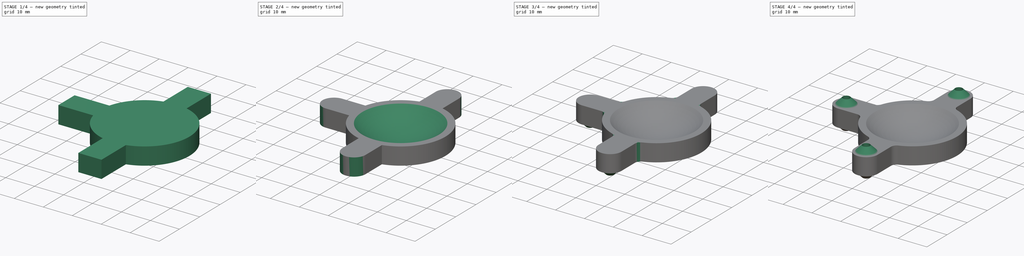
[diagram: build sequence overview — one tinted view per stage of 4, left to right]
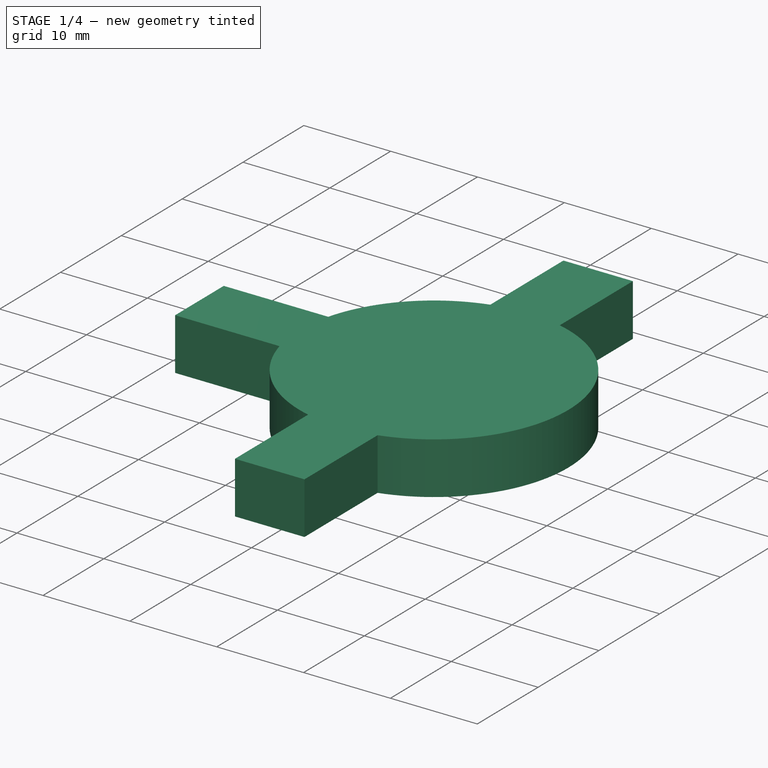
[diagram: stage 1 of 4 — iso view after this stage's code; geometry added in this stage tinted green]
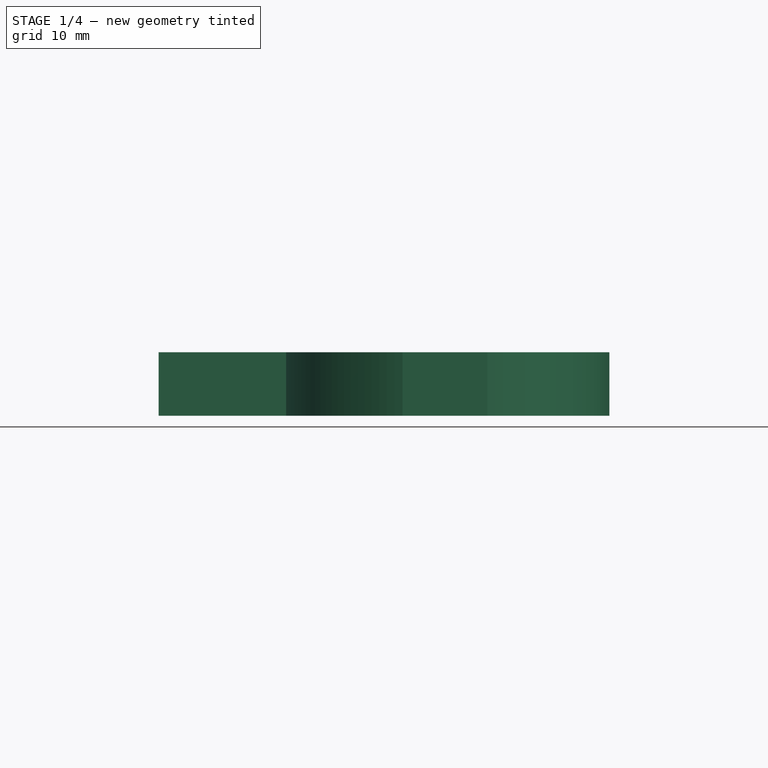
[diagram: stage 1 of 4 — front view after this stage's code; geometry added in this stage tinted green]
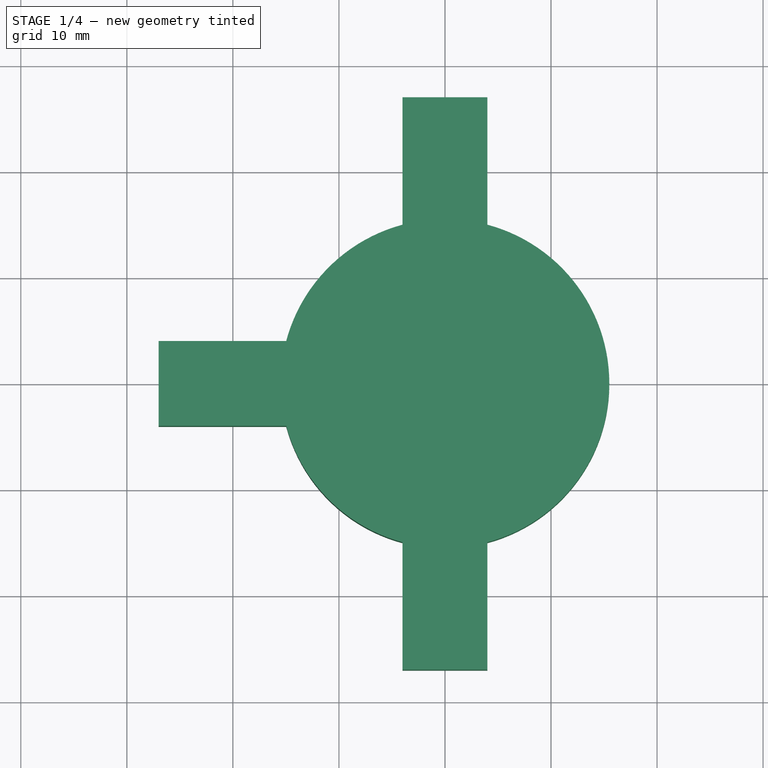
[diagram: stage 1 of 4 — top view after this stage's code; geometry added in this stage tinted green]
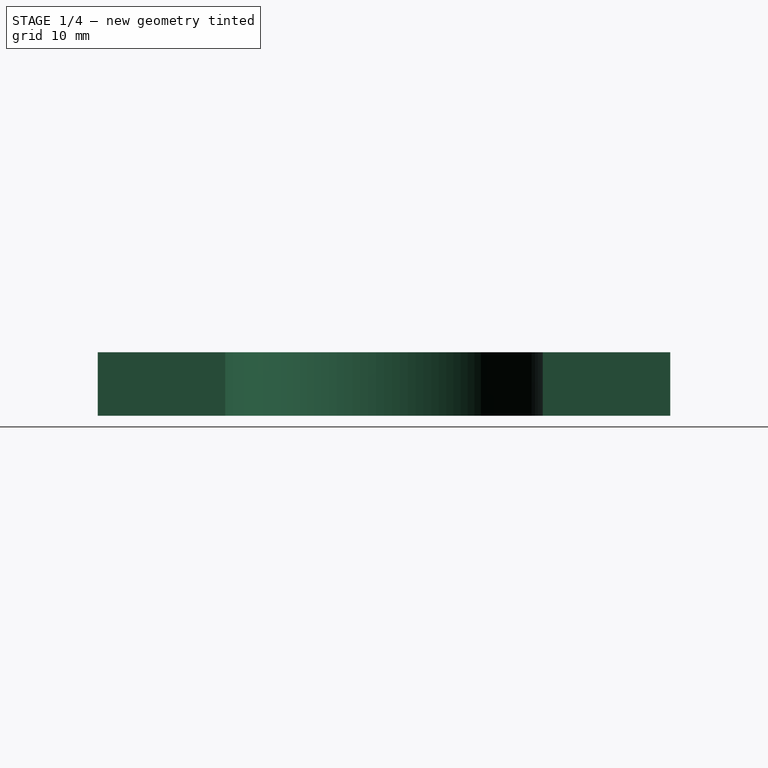
[diagram: stage 1 of 4 — right view after this stage's code; geometry added in this stage tinted green]
FCSTD DOCUMENT  (FreeCAD 0.20R29603 (Git))
Label: CapsuleHolder_Middle
License: All rights reserved
LicenseURL: http://en.wikipedia.org/wiki/All_rights_reserved
objects: Sketcher::SketchObject×6, PartDesign::Pad×4, PartDesign::Body×3, PartDesign::Boolean×2, PartDesign::Fillet×2, PartDesign::Chamfer×2, PartDesign::Pocket×2, Part::Sphere×1, Spreadsheet::Sheet×1
note: 32 computed .brp shape members not serialized (recipe doc carries the construction recipe); baked Part::Feature solids carry a one-line shape summary decoded from their .brp

FEATURE [Sketcher::SketchObject] Sketch
  FullyConstrained = true
  MapMode = 5
  Support = -> [XY_Plane]
  sketch-geometry (1):
    g0: Circle CenterX=0 CenterY=0 CenterZ=0 NormalX=0 NormalY=0 NormalZ=1 AngleXU=0 Radius=15.5
  constraints (2):
    c: Coincident(g0,g-1)
    c: Diameter(g0) = 31
FEATURE [PartDesign::Pad] Pad
  Direction = (0,0,1)
  Length = 6
  Length2 = 10
  Profile = -> Sketch
  ReferenceAxis = -> Sketch [N_Axis]
  Type = 0
FEATURE [Sketcher::SketchObject] Sketch001
  FullyConstrained = true
  MapMode = 5
  Support = -> [XY_Plane001]
  sketch-geometry (9):
    g0: LineSegment StartX=-4 StartY=27 StartZ=0 EndX=-4 EndY=4 EndZ=0
    g1: LineSegment StartX=-4 StartY=-27 StartZ=0 EndX=4 EndY=-27 EndZ=0
    g2: LineSegment StartX=4 StartY=-27 StartZ=0 EndX=4 EndY=27 EndZ=0
    g3: LineSegment StartX=4 StartY=27 StartZ=0 EndX=-4 EndY=27 EndZ=0
    g4: GeomPoint X=0 Y=0 Z=0
    g5: LineSegment StartX=-4 StartY=4 StartZ=0 EndX=-27 EndY=4 EndZ=0
    g6: LineSegment StartX=-27 StartY=4 StartZ=0 EndX=-27 EndY=-4 EndZ=0
    g7: LineSegment StartX=-27 StartY=-4 StartZ=0 EndX=-4 EndY=-4 EndZ=0
    g8: LineSegment StartX=-4 StartY=-4 StartZ=0 EndX=-4 EndY=-27 EndZ=0
  constraints (23):
    c: Coincident(g8,g1)
    c: Coincident(g1,g2)
    c: Coincident(g2,g3)
    c: Coincident(g3,g0)
    c: Horizontal(g1)
    c: Horizontal(g3)
    c: Vertical(g0)
    c: Vertical(g2)
    c: Symmetric(g1,g0,g4)
    c: Coincident(g4,g-1)
    c: DistanceY(g2,g2) = 54
    c: DistanceX(g3,g3) = 8
    c: Horizontal(g5)
    c: Coincident(g5,g6)
    c: Vertical(g6)
    c: Coincident(g6,g7)
    c: Horizontal(g7)
    c: Coincident(g0,g5)
    c: Coincident(g8,g7)
    c: Symmetric(g0,g7,g-1)
    c: Equal(g6,g3)
    c: DistanceX(g5,g4) = 27
    c: Equal(g0,g8)
FEATURE [PartDesign::Pad] Pad001
  Direction = (0,0,1)
  Length = 6
  Length2 = 10
  Profile = -> Sketch001
  ReferenceAxis = -> Sketch001 [N_Axis]
  Type = 0
FEATURE [PartDesign::Body] Body001  label="Fastening"
  Group = -> [Sketch001,Pad001]
  Origin = -> Origin001
  Tip = -> Pad001
FEATURE [PartDesign::Boolean] Boolean
  Group = -> [Body001,Body]
  Type = 0
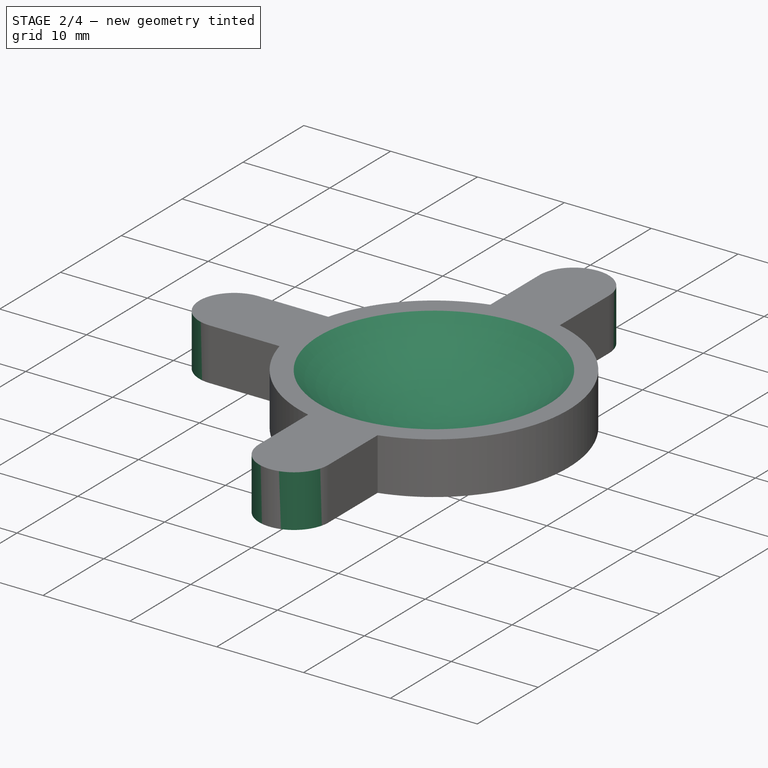
[diagram: stage 2 of 4 — iso view after this stage's code; geometry added in this stage tinted green]
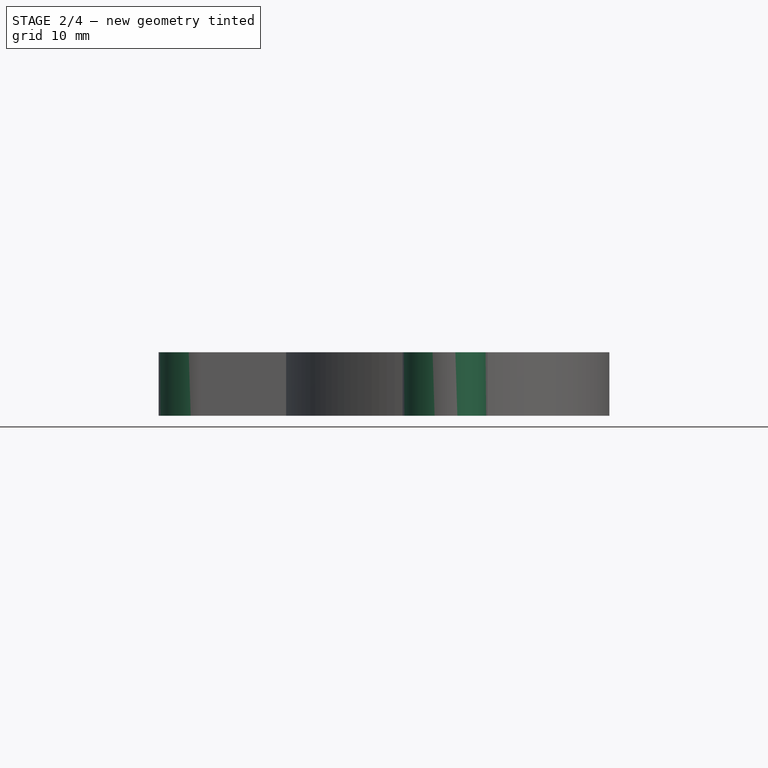
[diagram: stage 2 of 4 — front view after this stage's code; geometry added in this stage tinted green]
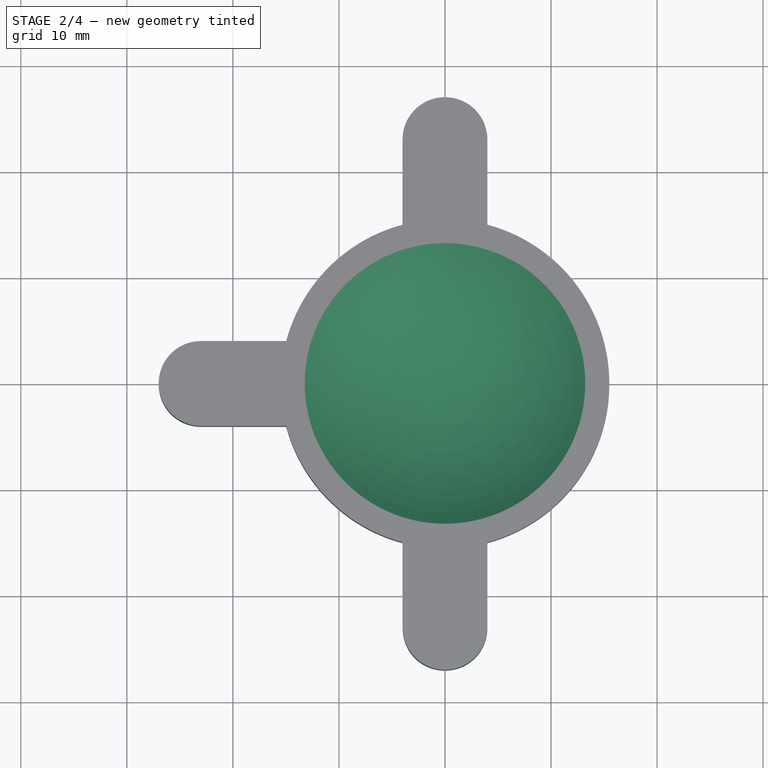
[diagram: stage 2 of 4 — top view after this stage's code; geometry added in this stage tinted green]
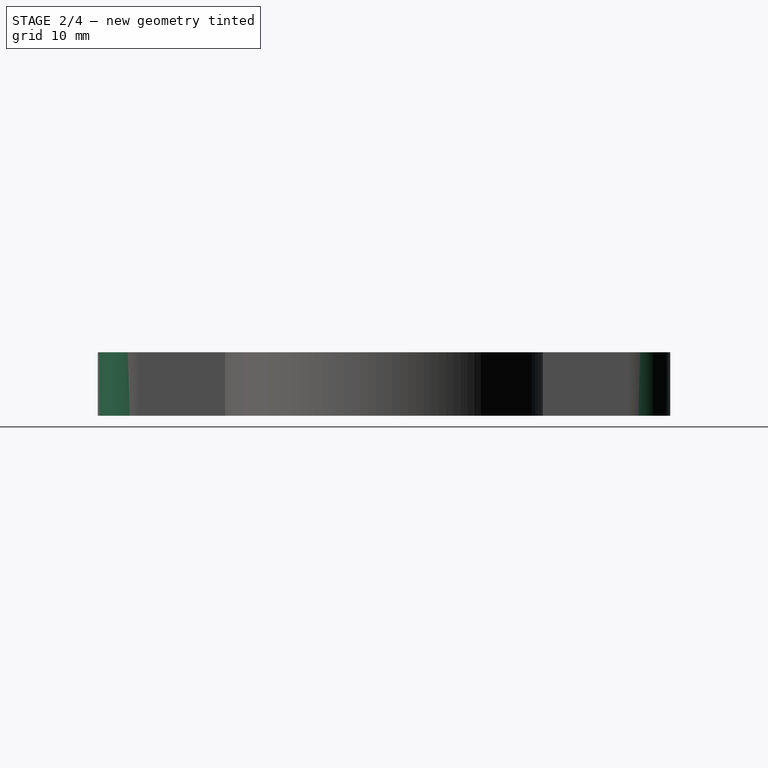
[diagram: stage 2 of 4 — right view after this stage's code; geometry added in this stage tinted green]
FEATURE [PartDesign::Body] Body  label="Main"
  Group = -> [Sketch,Pad]
  Origin = -> Origin
  Tip = -> Pad
FEATURE [Part::Sphere] Sphere  label="Сфера"
  Angle1 = -90
  Angle2 = 90
  Angle3 = 360
  AttacherType = Attacher::AttachEngine3D
  Placement = pos=(0,0,21) rot=(0,0,1;0rad)
  Radius = 20
FEATURE [PartDesign::Boolean] Boolean001
  BaseFeature = -> Boolean
  Group = -> [Sphere]
  Type = 1
FEATURE [PartDesign::Fillet] Fillet
  Base = -> Boolean001 [Edge61,Edge62,Edge57,Edge41,Edge25,Edge8]
  BaseFeature = -> Boolean001
  Radius = 3.99
  SupportTransform = false
  UseAllEdges = false
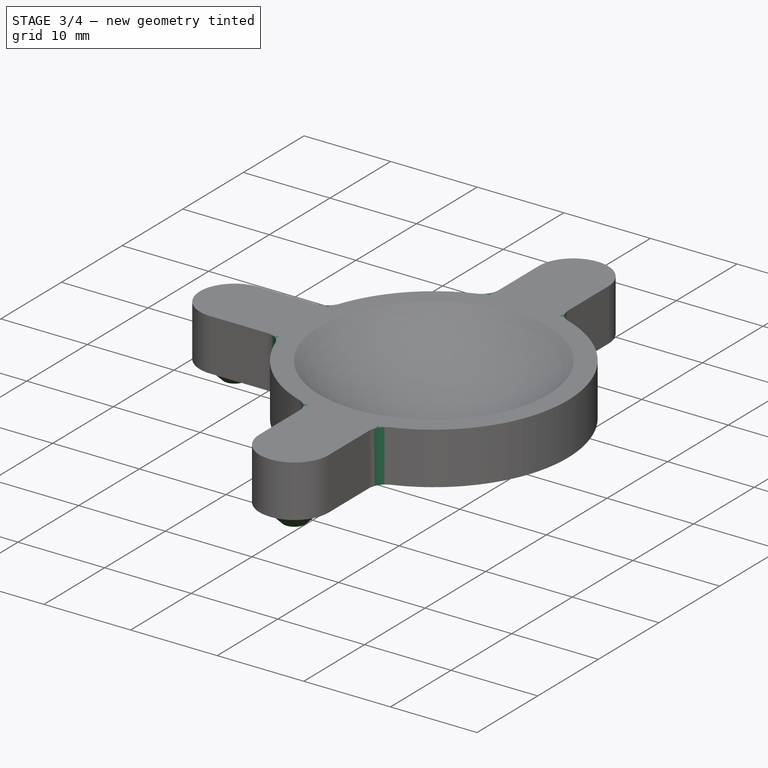
[diagram: stage 3 of 4 — iso view after this stage's code; geometry added in this stage tinted green]
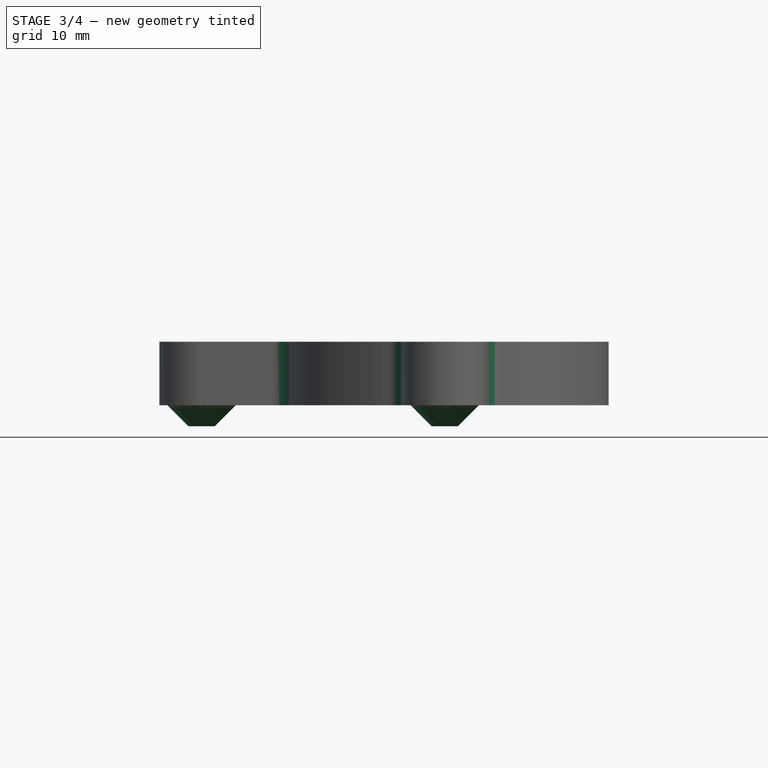
[diagram: stage 3 of 4 — front view after this stage's code; geometry added in this stage tinted green]
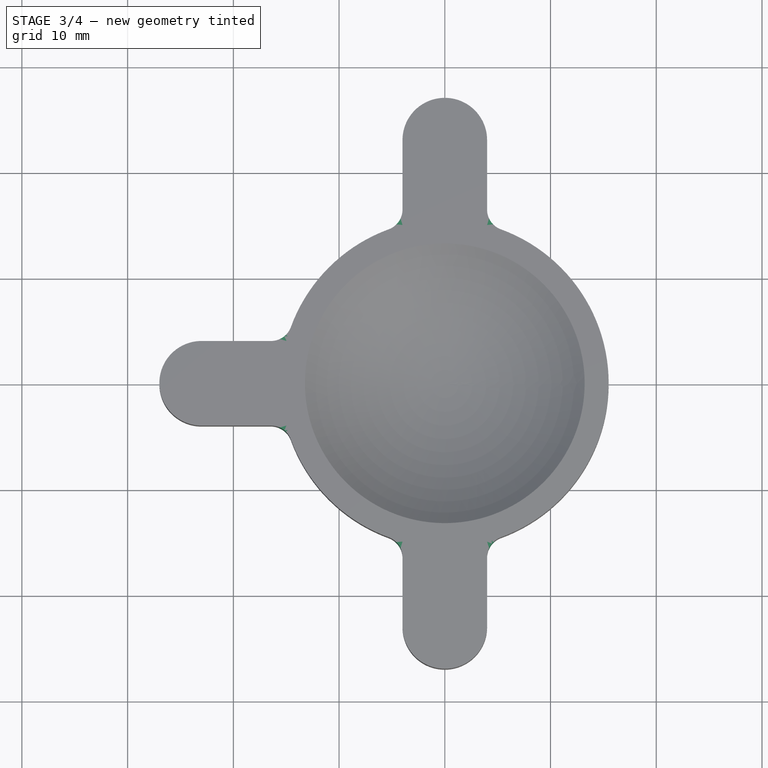
[diagram: stage 3 of 4 — top view after this stage's code; geometry added in this stage tinted green]
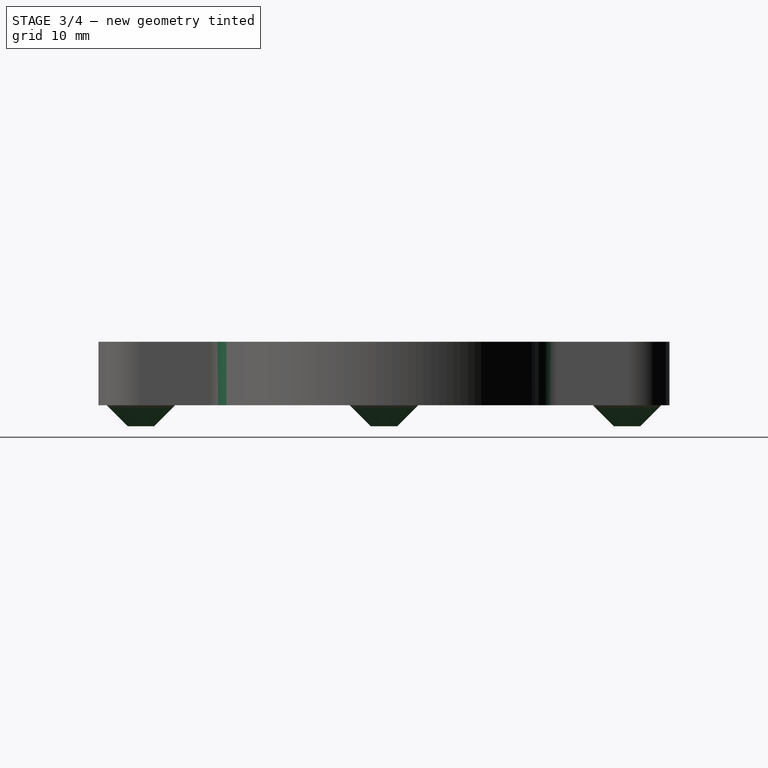
[diagram: stage 3 of 4 — right view after this stage's code; geometry added in this stage tinted green]
FEATURE [PartDesign::Fillet] Fillet001
  Base = -> Fillet [Edge39,Edge21,Edge74,Edge70,Edge35,Edge3]
  BaseFeature = -> Fillet
  Radius = 2
  SupportTransform = false
  UseAllEdges = false
FEATURE [Sketcher::SketchObject] Sketch002
  FullyConstrained = true
  MapMode = 5
  Placement = pos=(0,0,0) rot=(1,0,0;3.14159rad)
  Support = -> [Fillet001]
  expr: Constraints[5] = <<Vars>>.pillar_diameter
  expr: Constraints[6] = <<Vars>>.pillar_diameter
  expr: Constraints[7] = <<Vars>>.pillar_diameter
  sketch-geometry (3):
    g0: Circle CenterX=0 CenterY=23 CenterZ=0 NormalX=0 NormalY=0 NormalZ=1 AngleXU=0 Radius=1.25
    g1: Circle CenterX=-23 CenterY=0 CenterZ=0 NormalX=0 NormalY=0 NormalZ=1 AngleXU=0 Radius=1.25
    g2: Circle CenterX=0 CenterY=-23 CenterZ=0 NormalX=0 NormalY=0 NormalZ=1 AngleXU=0 Radius=1.25
  constraints (8):
    c: PointOnObject(g0,g-2)
    c: PointOnObject(g1,g-1)
    c: Symmetric(g2,g0,g-1)
    c: DistanceX(g1,g-1) = 23
    c: DistanceY(g-1,g0) = 23
    c: Diameter(g0) = 2.5
    c: Diameter(g1) = 2.5
    c: Diameter(g2) = 2.5
FEATURE [PartDesign::Pad] Pad002
  BaseFeature = -> Fillet001
  Direction = (0,0,-1)
  Length = 2
  Length2 = 10
  Profile = -> Sketch002
  ReferenceAxis = -> Sketch002 [N_Axis]
  Type = 0
FEATURE [PartDesign::Chamfer] Chamfer
  Angle = 45
  Base = -> Pad002 [Edge76,Edge12,Edge65]
  BaseFeature = -> Pad002
  ChamferType = 0
  FlipDirection = false
  Size = 1.99
  Size2 = 1
  SupportTransform = false
  UseAllEdges = false
FEATURE [Sketcher::SketchObject] Sketch003
  FullyConstrained = true
  MapMode = 5
  Placement = pos=(0,0,-2) rot=(1,0,0;3.14159rad)
  Support = -> [Chamfer]
  expr: Constraints[3] = <<Vars>>.pillar_diameter
  expr: Constraints[4] = <<Vars>>.pillar_diameter
  expr: Constraints[5] = <<Vars>>.pillar_diameter
  sketch-geometry (3):
    g0: Circle CenterX=0 CenterY=23 CenterZ=0 NormalX=0 NormalY=0 NormalZ=1 AngleXU=0 Radius=1.25
    g1: Circle CenterX=-23 CenterY=0 CenterZ=0 NormalX=0 NormalY=0 NormalZ=1 AngleXU=0 Radius=1.25
    g2: Circle CenterX=0 CenterY=-23 CenterZ=0 NormalX=0 NormalY=0 NormalZ=1 AngleXU=0 Radius=1.25
  constraints (8):
    c: PointOnObject(g0,g-2)
    c: PointOnObject(g1,g-1)
    c: Symmetric(g2,g0,g-1)
    c: Diameter(g0) = 2.5
    c: Diameter(g2) = 2.5
    c: Diameter(g1) = 2.5
    c: DistanceX(g1,g-1) = 23
    c: DistanceY(g-1,g0) = 23
FEATURE [PartDesign::Pocket] Pocket
  BaseFeature = -> Chamfer
  Direction = (0,0,1)
  Length = 4
  Length2 = 5
  Profile = -> Sketch003
  ReferenceAxis = -> Sketch003 [N_Axis]
  Type = 0
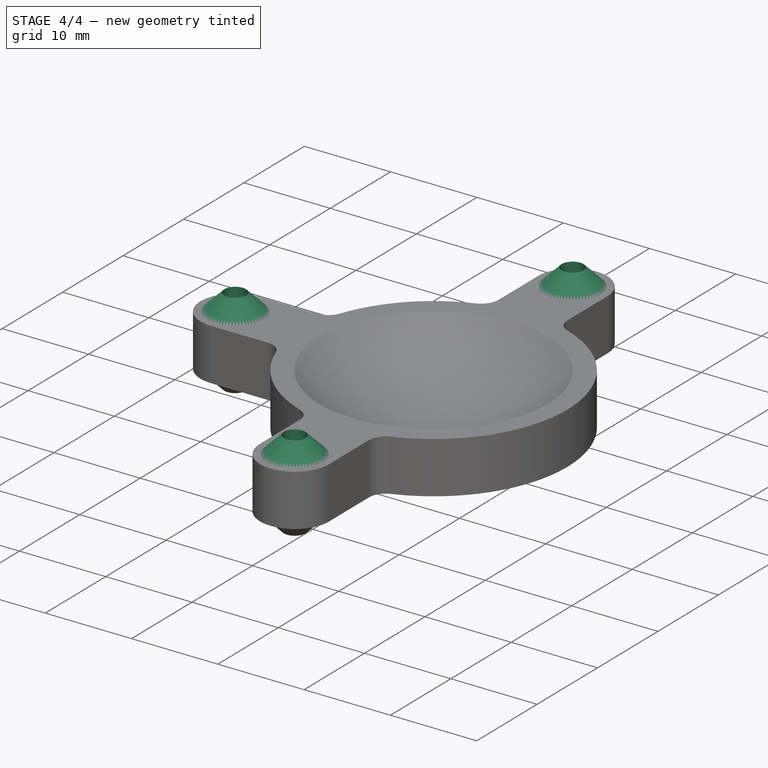
[diagram: stage 4 of 4 — iso view after this stage's code; geometry added in this stage tinted green]
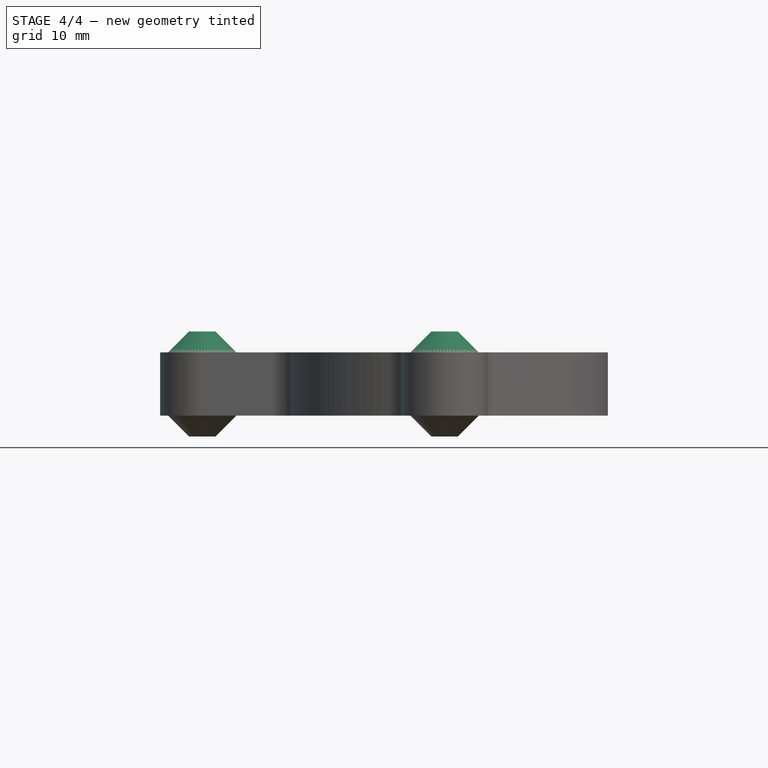
[diagram: stage 4 of 4 — front view after this stage's code; geometry added in this stage tinted green]
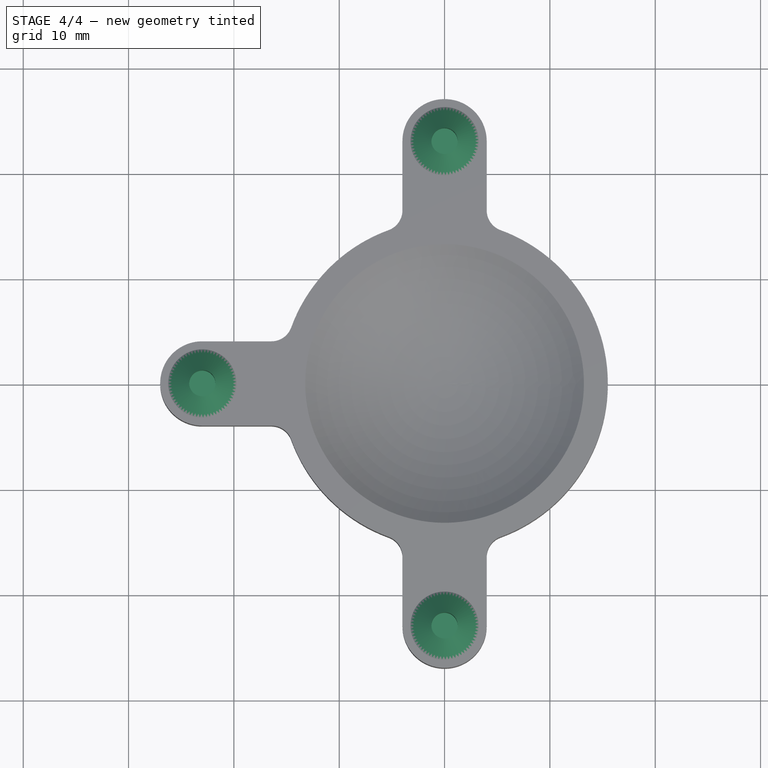
[diagram: stage 4 of 4 — top view after this stage's code; geometry added in this stage tinted green]
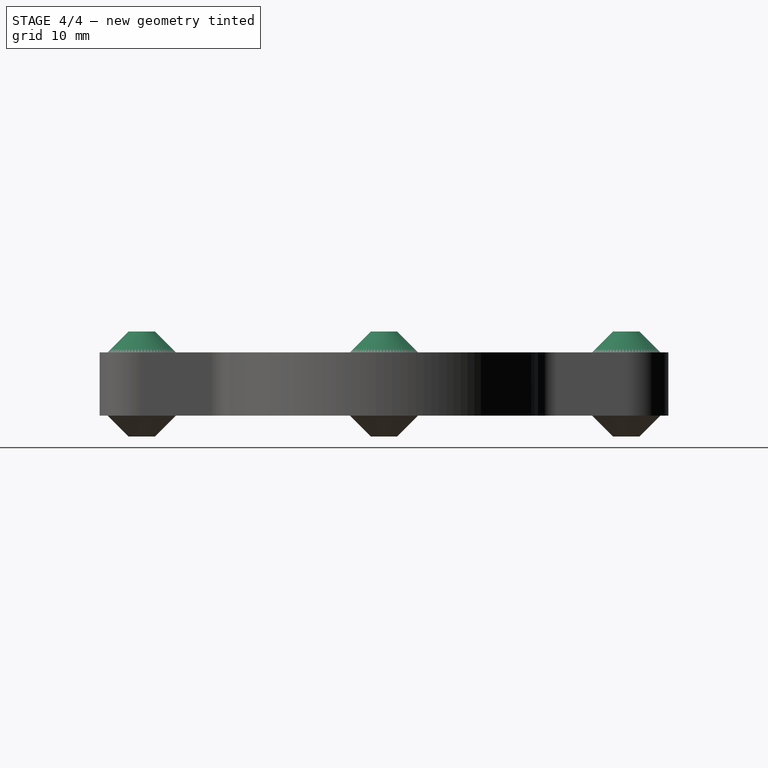
[diagram: stage 4 of 4 — right view after this stage's code; geometry added in this stage tinted green]
FEATURE [Spreadsheet::Sheet] Spreadsheet  label="Vars"
  cells = A2=pillar_diameter; B2(pillar_diameter)=2.5
FEATURE [Sketcher::SketchObject] Sketch004
  FullyConstrained = true
  MapMode = 5
  Placement = pos=(0,0,6) rot=(0,0,1;0rad)
  Support = -> [Pocket]
  expr: Constraints[3] = <<Vars>>.pillar_diameter
  expr: Constraints[4] = <<Vars>>.pillar_diameter
  expr: Constraints[5] = <<Vars>>.pillar_diameter
  sketch-geometry (3):
    g0: Circle CenterX=0 CenterY=23 CenterZ=0 NormalX=0 NormalY=0 NormalZ=1 AngleXU=0 Radius=1.25
    g1: Circle CenterX=-23 CenterY=0 CenterZ=0 NormalX=0 NormalY=0 NormalZ=1 AngleXU=0 Radius=1.25
    g2: Circle CenterX=0 CenterY=-23 CenterZ=0 NormalX=0 NormalY=0 NormalZ=1 AngleXU=0 Radius=1.25
  constraints (8):
    c: PointOnObject(g0,g-2)
    c: PointOnObject(g1,g-1)
    c: Symmetric(g2,g0,g-1)
    c: Diameter(g0) = 2.5
    c: Diameter(g2) = 2.5
    c: Diameter(g1) = 2.5
    c: DistanceX(g1,g-1) = 23
    c: DistanceY(g-1,g0) = 23
FEATURE [PartDesign::Pad] Pad003
  BaseFeature = -> Pocket
  Direction = (0,0,1)
  Length = 2
  Length2 = 10
  Profile = -> Sketch004
  ReferenceAxis = -> Sketch004 [N_Axis]
  Type = 0
FEATURE [PartDesign::Chamfer] Chamfer001
  Angle = 45
  Base = -> Pad003 [Edge119,Edge128,Edge44]
  BaseFeature = -> Pad003
  ChamferType = 0
  FlipDirection = false
  Size = 1.99
  Size2 = 1
  SupportTransform = false
  UseAllEdges = false
FEATURE [Sketcher::SketchObject] Sketch005
  FullyConstrained = true
  MapMode = 5
  Placement = pos=(0,0,8) rot=(0,0,1;0rad)
  Support = -> [Chamfer001]
  expr: Constraints[3] = <<Vars>>.pillar_diameter
  expr: Constraints[4] = <<Vars>>.pillar_diameter
  expr: Constraints[5] = <<Vars>>.pillar_diameter
  sketch-geometry (3):
    g0: Circle CenterX=0 CenterY=23 CenterZ=0 NormalX=0 NormalY=0 NormalZ=1 AngleXU=0 Radius=1.25
    g1: Circle CenterX=-23 CenterY=0 CenterZ=0 NormalX=0 NormalY=0 NormalZ=1 AngleXU=0 Radius=1.25
    g2: Circle CenterX=0 CenterY=-23 CenterZ=0 NormalX=0 NormalY=0 NormalZ=1 AngleXU=0 Radius=1.25
  constraints (8):
    c: PointOnObject(g0,g-2)
    c: PointOnObject(g1,g-1)
    c: Symmetric(g2,g0,g-1)
    c: Diameter(g0) = 2.5
    c: Diameter(g2) = 2.5
    c: Diameter(g1) = 2.5
    c: DistanceX(g1,g-1) = 23
    c: DistanceY(g-1,g0) = 23
FEATURE [PartDesign::Pocket] Pocket001
  BaseFeature = -> Chamfer001
  Direction = (0,0,-1)
  Length = 4
  Length2 = 5
  Profile = -> Sketch005
  ReferenceAxis = -> Sketch005 [N_Axis]
  Type = 0
FEATURE [PartDesign::Body] Body002
  Group = -> [Boolean,Boolean001,Fillet,Fillet001,Sketch002,Sketch003,Pad002,Chamfer,Pocket,Sketch004,Sketch005,Pad003,Chamfer001,Pocket001]
  Origin = -> Origin002
  Tip = -> Pocket001
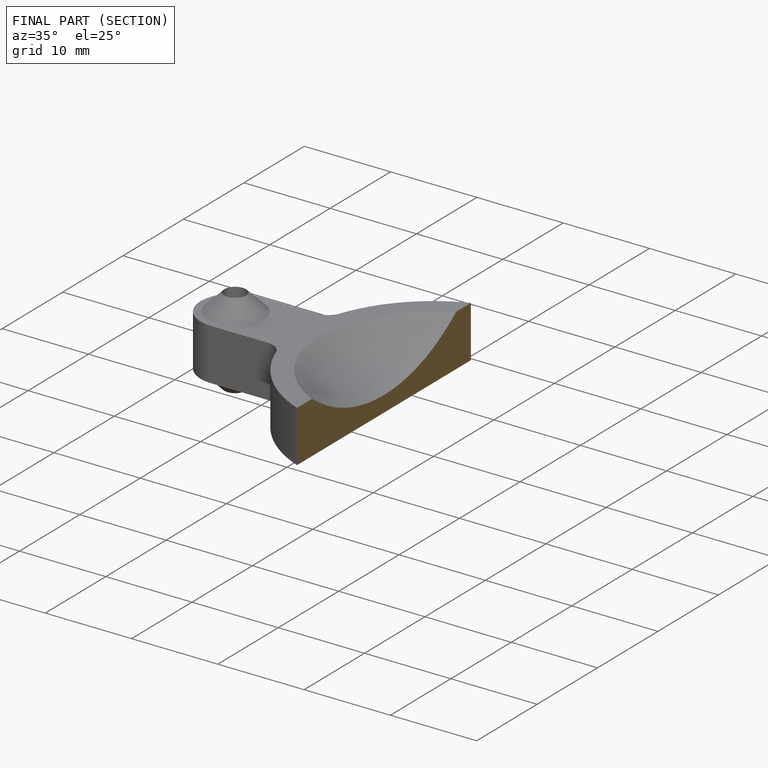
[diagram: finished part — half-section view (interior)]
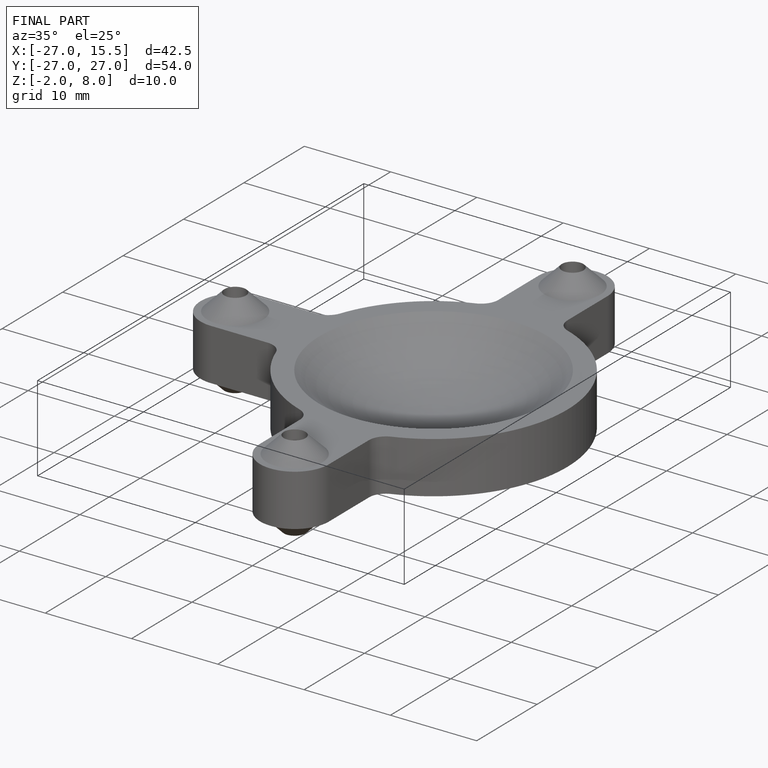
[diagram: finished part — iso view with bounding-box wireframe]
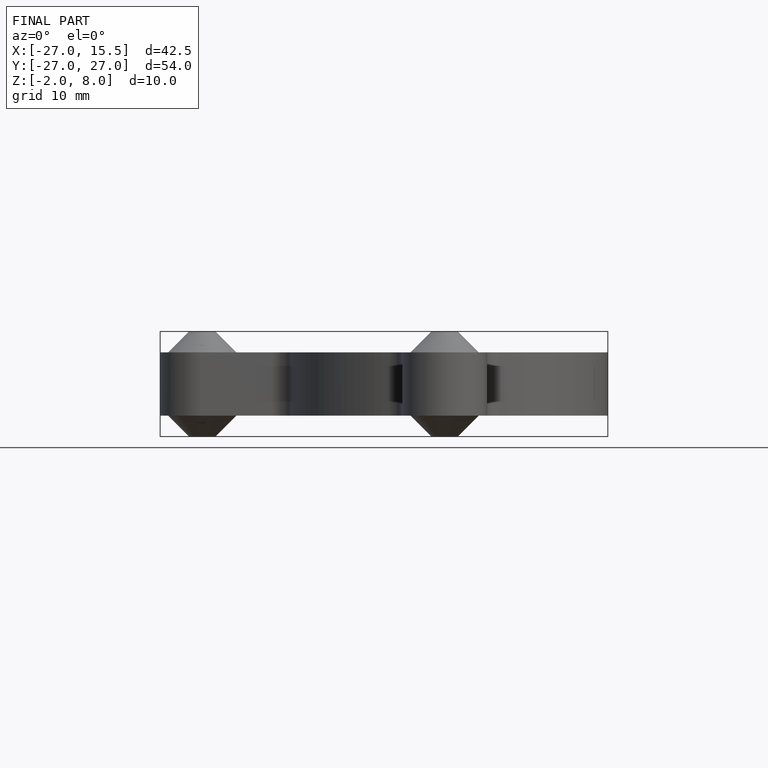
[diagram: finished part — front view with bounding-box wireframe]
